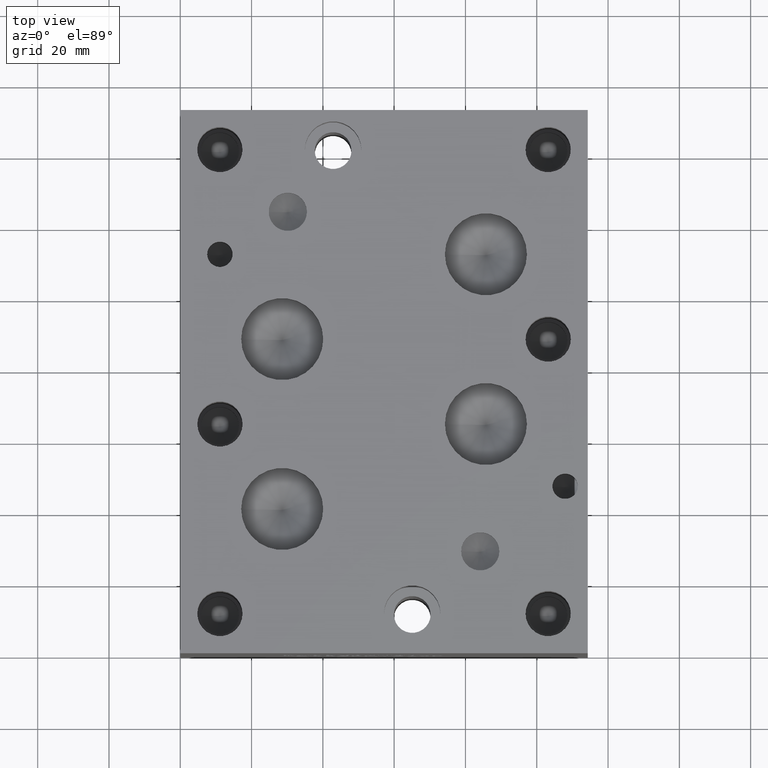
[diagram: clean part render]
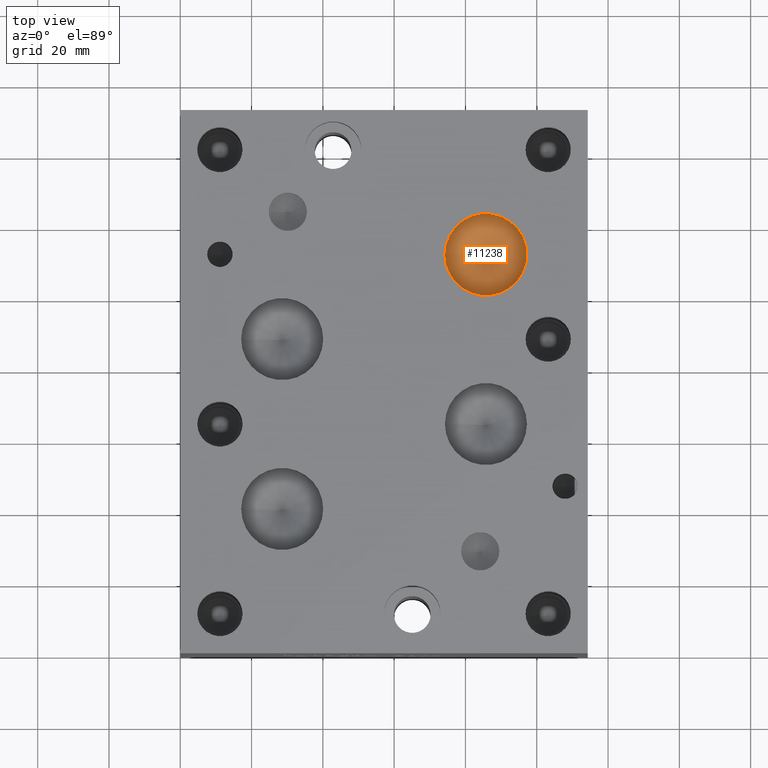
[diagram: same view with one face highlighted and labeled with its STEP entity id]
A machine part, top view. The second image highlights one B-rep face of the part: STEP entity #11238.
In plain terms, the highlighted conical surface has half-angle 60 deg.
Its self-contained STEP definition (entity closure, byte-faithful):
#79=CONICAL_SURFACE('',#11790,5.7531,1.0471975511966);
#205=CIRCLE('',#11791,11.5062);
#206=CIRCLE('',#11792,11.5062);
#1237=FACE_OUTER_BOUND('',#1879,.T.);
#1879=EDGE_LOOP('',(#9881,#9882,#9883,#9884));
#2983=LINE('',#19126,#4053);
#4053=VECTOR('',#13935,5.7531);
#5379=VERTEX_POINT('',#19122);
#5380=VERTEX_POINT('',#19123);
#5381=VERTEX_POINT('',#19125);
#6910=EDGE_CURVE('',#5379,#5380,#205,.T.);
#6911=EDGE_CURVE('',#5380,#5381,#2983,.T.);
#6912=EDGE_CURVE('',#5380,#5379,#206,.T.);
#9881=ORIENTED_EDGE('',*,*,#6910,.T.);
#9882=ORIENTED_EDGE('',*,*,#6911,.T.);
#9883=ORIENTED_EDGE('',*,*,#6911,.F.);
#9884=ORIENTED_EDGE('',*,*,#6912,.T.);
#11238=ADVANCED_FACE('',(#1237),#79,.F.);
#11790=AXIS2_PLACEMENT_3D('',#19121,#13931,#13932);
#11791=AXIS2_PLACEMENT_3D('',#19124,#13933,#13934);
#11792=AXIS2_PLACEMENT_3D('',#19127,#13936,#13937);
#13931=DIRECTION('center_axis',(0.,0.,1.));
#13932=DIRECTION('ref_axis',(1.,0.,0.));
#13933=DIRECTION('center_axis',(0.,0.,1.));
#13934=DIRECTION('ref_axis',(1.,0.,0.));
#13935=DIRECTION('',(0.866025403784439,1.06057523872491E-16,-0.5));
#13936=DIRECTION('center_axis',(0.,0.,1.));
#13937=DIRECTION('ref_axis',(1.,0.,0.));
#19121=CARTESIAN_POINT('Origin',(85.725,111.9124,66.2353361663252));
#19122=CARTESIAN_POINT('',(97.2312,111.9124,69.55689));
#19123=CARTESIAN_POINT('',(74.2188,111.9124,69.55689));
#19124=CARTESIAN_POINT('Origin',(85.725,111.9124,69.55689));
#19125=CARTESIAN_POINT('',(85.725,111.9124,62.9137823326503));
#19126=CARTESIAN_POINT('',(79.9719,111.9124,66.2353361663252));
#19127=CARTESIAN_POINT('Origin',(85.725,111.9124,69.55689));